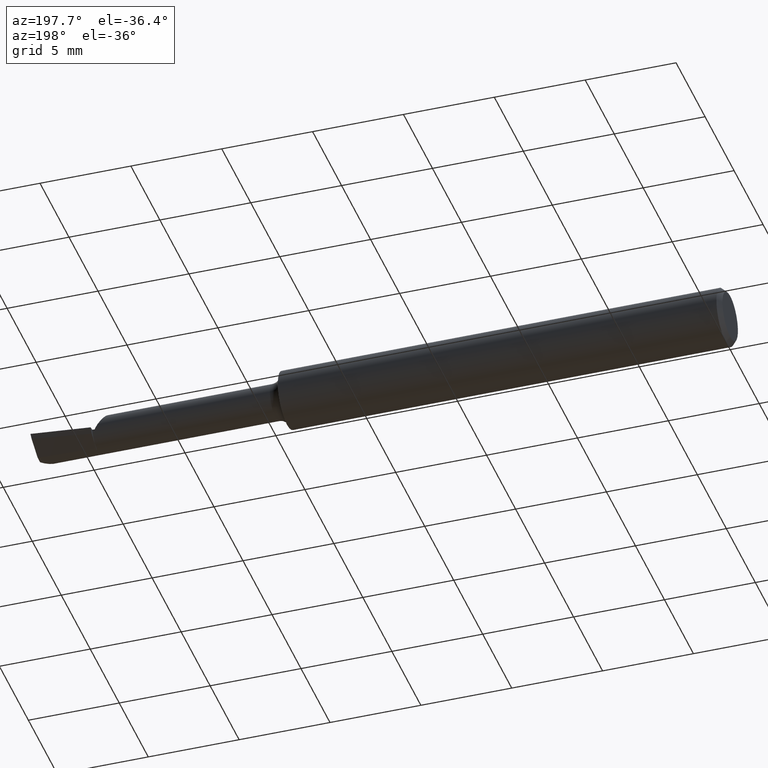
[diagram: clean part render]
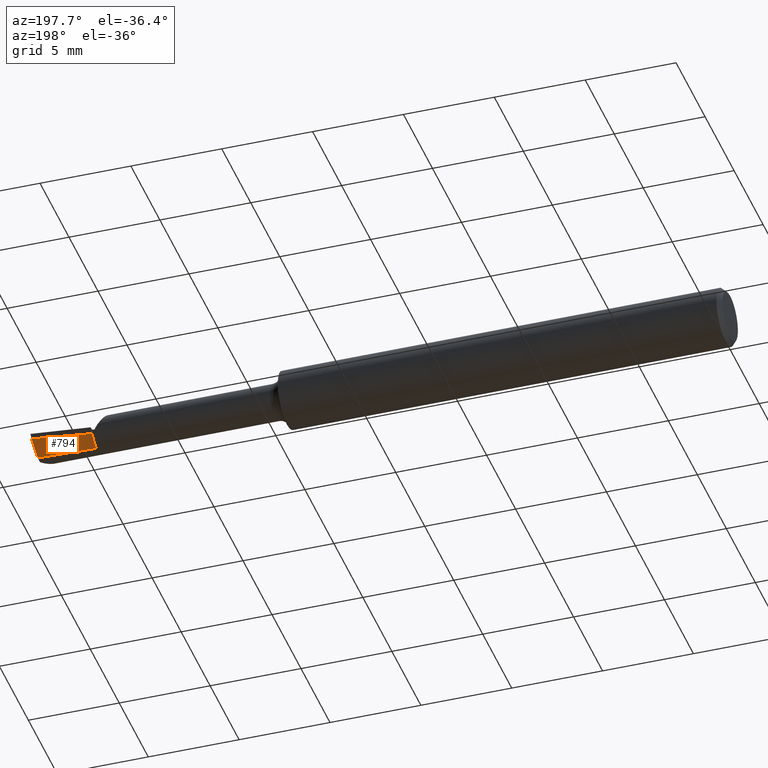
[diagram: same view with one face highlighted and labeled with its STEP entity id]
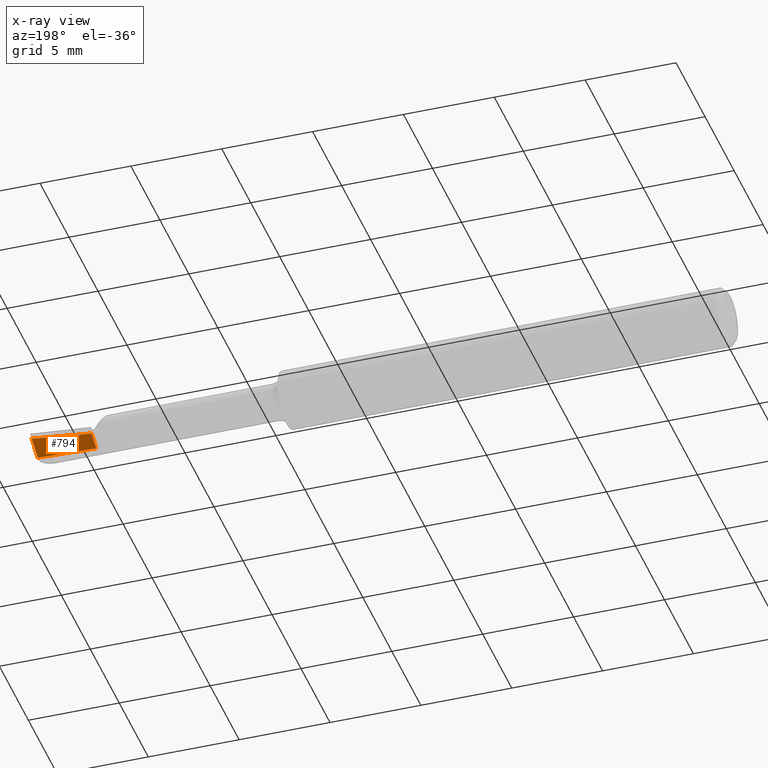
[diagram: x-ray of the same camera — body ghosted, the highlighted face saturated]
A machine part, auxiliary view. The second image highlights one B-rep face of the part: STEP entity #794.
The next image is the same camera in x-ray: the body ghosted, the highlighted face saturated — about 0% of this face is hidden behind the body in this view.
In plain terms, the highlighted face is a freeform B-spline surface patch.
Its self-contained STEP definition (entity closure, byte-faithful):
#2 = CARTESIAN_POINT ( 'NONE',  ( 0.7777777777777796775, -0.08446778369049480484, 0.02706893702457546097 ) ) ;
#17 = CARTESIAN_POINT ( 'NONE',  ( 1.411647286080403019, 0.01288141224813498659, -0.03900000000000003464 ) ) ;
#19 = CARTESIAN_POINT ( 'NONE',  ( -0.6666666666666620777, 0.08446778369049480484, -0.02706893702457545056 ) ) ;
#23 = CARTESIAN_POINT ( 'NONE',  ( 0.4682539682539705872, -0.03647374260270008078, -0.02969787187380758253 ) ) ;
#30 = CARTESIAN_POINT ( 'NONE',  ( 1.494920729777069690, 0.01671314237762522650, -0.03900000000000002076 ) ) ;
#34 =( BOUNDED_CURVE ( )  B_SPLINE_CURVE ( 1, ( #292, #109 ),
 .UNSPECIFIED., .F., .T. ) 
 B_SPLINE_CURVE_WITH_KNOTS ( ( 2, 2 ),
 ( 0.001724731492398852125, 0.002598886121437397369 ),
 .UNSPECIFIED. ) 
 CURVE ( )  GEOMETRIC_REPRESENTATION_ITEM ( )  RATIONAL_B_SPLINE_CURVE ( ( 0.9882916646871111599, 0.9882916646871111599 ) ) 
 REPRESENTATION_ITEM ( '' )  );
#36 = CARTESIAN_POINT ( 'NONE',  ( 0.05555555555555891090, -0.04595973774164850700, 0.009999999999999993269 ) ) ;
#63 = CARTESIAN_POINT ( 'NONE',  ( 0.9841269841269852936, -0.08784761505601204612, -0.01226092827625134725 ) ) ;
#75 = CARTESIAN_POINT ( 'NONE',  ( 1.293650793650794162, -0.05950713062688500754, -0.06274448060681807326 ) ) ;
#96 = CARTESIAN_POINT ( 'NONE',  ( 0.2619047619047648601, -0.04574713027336072685, -0.01093149418118462800 ) ) ;
#107 = VERTEX_POINT ( 'NONE', #376 ) ;
#109 = CARTESIAN_POINT ( 'NONE',  ( 1.370000000000000329, 0.04135515867258438699, -0.02240643533555659525 ) ) ;
#129 = CARTESIAN_POINT ( 'NONE',  ( 1.370000000000000329, 0.04135515867258438699, -0.02240643533555659525 ) ) ;
#132 = CARTESIAN_POINT ( 'NONE',  ( 1.370000000000000329, 0.04135515867258438699, -0.02240643533555659525 ) ) ;
#136 = CARTESIAN_POINT ( 'NONE',  ( 0.6746031746031765364, -0.07441292776309291201, 0.04405320219676703980 ) ) ;
#148 =( BOUNDED_SURFACE ( )  B_SPLINE_SURFACE ( 1, 2, ( 
 ( #272, #653, #707, #635, #701, #217, #326, #460, #395, #572, #23, #716, #96, #267, #36, #456, #510, #504, #766, #712, #341, #587, #213, #150, #281, #391, #643, #197, #675 ),
 ( #612, #628, #75, #564, #439, #63, #551, #2, #136, #378, #248, #189, #484, #743, #427, #679, #365, #431, #521, #342, #760, #19, #164, #768, #697, #573, #392, #588, #516 ) ),
 .UNSPECIFIED., .F., .F., .T. ) 
 B_SPLINE_SURFACE_WITH_KNOTS ( ( 2, 2 ),
 ( 3, 2, 2, 2, 2, 2, 2, 2, 2, 2, 2, 2, 2, 2, 3 ),
 ( 0.000000000000000000, 1.000000000000000000 ),
 ( 0.000000000000000000, 0.07142857142857142461, 0.1428571428571428492, 0.2142857142857142738, 0.2857142857142856984, 0.3571428571428571508, 0.4285714285714285476, 0.5000000000000000000, 0.5714285714285713969, 0.6428571428571429047, 0.7142857142857143016, 0.7857142857142856984, 0.8571428571428570953, 0.9285714285714286031, 1.000000000000000000 ),
 .UNSPECIFIED. ) 
 GEOMETRIC_REPRESENTATION_ITEM ( )  RATIONAL_B_SPLINE_SURFACE ( (
 ( 1.000000000000000000, 0.9749279121818236193, 1.000000000000000000, 0.9749279121818236193, 1.000000000000000000, 0.9749279121818236193, 1.000000000000000000, 0.9749279121818236193, 1.000000000000000000, 0.9749279121818236193, 1.000000000000000000, 0.9749279121818236193, 1.000000000000000000, 0.9749279121818236193, 1.000000000000000000, 0.9749279121818236193, 1.000000000000000000, 0.9749279121818236193, 1.000000000000000000, 0.9749279121818236193, 1.000000000000000000, 0.9749279121818236193, 1.000000000000000000, 0.9749279121818236193, 1.000000000000000000, 0.9749279121818236193, 1.000000000000000000, 0.9749279121818236193, 1.000000000000000000),
 ( 1.000000000000000000, 0.9749279121818236193, 1.000000000000000000, 0.9749279121818236193, 1.000000000000000000, 0.9749279121818236193, 1.000000000000000000, 0.9749279121818236193, 1.000000000000000000, 0.9749279121818236193, 1.000000000000000000, 0.9749279121818236193, 1.000000000000000000, 0.9749279121818236193, 1.000000000000000000, 0.9749279121818236193, 1.000000000000000000, 0.9749279121818236193, 1.000000000000000000, 0.9749279121818236193, 1.000000000000000000, 0.9749279121818236193, 1.000000000000000000, 0.9749279121818236193, 1.000000000000000000, 0.9749279121818236193, 1.000000000000000000, 0.9749279121818236193, 1.000000000000000000) ) ) 
 REPRESENTATION_ITEM ( '' )  SURFACE ( )  );
#150 = CARTESIAN_POINT ( 'NONE',  ( -0.8730158730158678049, 0.02969539714422872456, 0.03802276560945988537 ) ) ;
#154 = EDGE_CURVE ( 'NONE', #107, #491, #662, .T. ) ;
#164 = CARTESIAN_POINT ( 'NONE',  ( -0.7698412698412646638, 0.07441292776309291201, -0.04405320219676703286 ) ) ;
#171 = CARTESIAN_POINT ( 'NONE',  ( 1.496178134510733448, 0.02653297950056673210, -0.02945756494393632699 ) ) ;
#177 = ORIENTED_EDGE ( 'NONE', *, *, #731, .F. ) ;
#184 = CARTESIAN_POINT ( 'NONE',  ( 1.494920729777069690, 0.01671314237762522650, -0.03900000000000002076 ) ) ;
#189 = CARTESIAN_POINT ( 'NONE',  ( 0.3650793650793676681, -0.03150145455387539511, 0.08291677872550751172 ) ) ;
#197 = CARTESIAN_POINT ( 'NONE',  ( -1.285714285714279148, 0.04824217248555000281, 0.0004900102242139721832 ) ) ;
#213 = CARTESIAN_POINT ( 'NONE',  ( -0.7698412698412646638, 0.01997628288847712666, 0.04258222182132639921 ) ) ;
#217 = CARTESIAN_POINT ( 'NONE',  ( 0.9841269841269852936, 0.01121261792240686554, -0.04692360296771245359 ) ) ;
#237 = VERTEX_POINT ( 'NONE', #129 ) ;
#248 = CARTESIAN_POINT ( 'NONE',  ( 0.4682539682539705872, -0.04792976319478321756, 0.07197712304723306864 ) ) ;
#263 = CARTESIAN_POINT ( 'NONE',  ( 1.453288292462108666, 0.01470050349010161225, -0.03900000000000003464 ) ) ;
#267 = CARTESIAN_POINT ( 'NONE',  ( 0.1587301587301617467, -0.04824217248555000281, -0.0004900102242139638348 ) ) ;
#272 = CARTESIAN_POINT ( 'NONE',  ( 1.500000000000000222, 0.04595973774164850700, -0.01000000000000000021 ) ) ;
#279 = CARTESIAN_POINT ( 'NONE',  ( 1.498720638453481246, 0.04593126081184677190, -0.01012999375691903473 ) ) ;
#281 = CARTESIAN_POINT ( 'NONE',  ( -0.9761904761904703909, 0.03647374260270008078, 0.02969787187380758600 ) ) ;
#292 = CARTESIAN_POINT ( 'NONE',  ( 1.370000000000000329, 0.01120415919391035652, -0.03900000000000004158 ) ) ;
#305 = B_SPLINE_CURVE_WITH_KNOTS ( 'NONE', 3,
 ( #184, #171, #660, #598 ),
 .UNSPECIFIED., .F., .F.,
 ( 4, 4 ),
 ( 1.323639050263514647E-05, 0.001061002551687167646 ),
 .UNSPECIFIED. ) ;
#326 = CARTESIAN_POINT ( 'NONE',  ( 0.8809523809523824855, 0.0004777246448406644898, -0.04703264050045269373 ) ) ;
#341 = CARTESIAN_POINT ( 'NONE',  ( -0.5634920634920589366, -0.0004777246448406708866, 0.04703264050045269373 ) ) ;
#342 = CARTESIAN_POINT ( 'NONE',  ( -0.4603174603174559620, 0.08784761505601203224, 0.01226092827625136113 ) ) ;
#355 = ORIENTED_EDGE ( 'NONE', *, *, #518, .T. ) ;
#365 = CARTESIAN_POINT ( 'NONE',  ( -0.1507936507936470660, 0.05950713062688500060, 0.06274448060681807326 ) ) ;
#367 = VERTEX_POINT ( 'NONE', #279 ) ;
#376 = CARTESIAN_POINT ( 'NONE',  ( 1.370000000000000329, 0.01120415919391035652, -0.03900000000000004158 ) ) ;
#378 = CARTESIAN_POINT ( 'NONE',  ( 0.5714285714285736173, -0.06435807183569101919, 0.06103746736895860475 ) ) ;
#391 = CARTESIAN_POINT ( 'NONE',  ( -1.079365079365073754, 0.04325208806117143007, 0.02137297813815529010 ) ) ;
#392 = CARTESIAN_POINT ( 'NONE',  ( -1.182539682539676562, 0.01195352120577683128, -0.08564509193671035470 ) ) ;
#395 = CARTESIAN_POINT ( 'NONE',  ( 0.6746031746031765364, -0.01997628288847713013, -0.04258222182132639921 ) ) ;
#411 =( BOUNDED_CURVE ( )  B_SPLINE_CURVE ( 2, ( #498, #631, #132 ),
 .UNSPECIFIED., .F., .T. ) 
 B_SPLINE_CURVE_WITH_KNOTS ( ( 3, 3 ),
 ( 0.0004540267036943042224, 0.04489127974352310341 ),
 .UNSPECIFIED. ) 
 CURVE ( )  GEOMETRIC_REPRESENTATION_ITEM ( )  RATIONAL_B_SPLINE_CURVE ( ( 0.9996832908727948386, 0.9842836969129826752, 0.9882916646871111599 ) ) 
 REPRESENTATION_ITEM ( '' )  );
#427 = CARTESIAN_POINT ( 'NONE',  ( 0.05555555555555891090, 0.02639026225835061634, 0.08234999999999999265 ) ) ;
#431 = CARTESIAN_POINT ( 'NONE',  ( -0.2539682539682499574, 0.07382814887939052884, 0.04916236636154935891 ) ) ;
#439 = CARTESIAN_POINT ( 'NONE',  ( 1.087301587301588324, -0.08083788196770129442, -0.03071164731890034180 ) ) ;
#456 = CARTESIAN_POINT ( 'NONE',  ( -0.04761904761904422329, -0.04367730299774701119, 0.02049001022421395937 ) ) ;
#460 = CARTESIAN_POINT ( 'NONE',  ( 0.7777777777777796775, -0.01025716863272553743, -0.04714167803319291306 ) ) ;
#484 = CARTESIAN_POINT ( 'NONE',  ( 0.2619047619047648601, -0.01195352120577681740, 0.08564509193671035470 ) ) ;
#491 = VERTEX_POINT ( 'NONE', #786 ) ;
#497 = ORIENTED_EDGE ( 'NONE', *, *, #154, .F. ) ;
#498 = CARTESIAN_POINT ( 'NONE',  ( 1.498720638453481246, 0.04593126081184677190, -0.01012999375691903473 ) ) ;
#504 = CARTESIAN_POINT ( 'NONE',  ( -0.2539682539682499574, -0.03046160798427212726, 0.03741173285425204026 ) ) ;
#510 = CARTESIAN_POINT ( 'NONE',  ( -0.1507936507936470660, -0.03706945549100956749, 0.02895087153923299808 ) ) ;
#516 = CARTESIAN_POINT ( 'NONE',  ( -1.388888888888882400, -0.02639026225835062675, -0.08234999999999999265 ) ) ;
#518 = EDGE_CURVE ( 'NONE', #107, #237, #34, .T. ) ;
#521 = CARTESIAN_POINT ( 'NONE',  ( -0.3571428571428530430, 0.08083788196770129442, 0.03071164731890034874 ) ) ;
#551 = CARTESIAN_POINT ( 'NONE',  ( 0.8809523809523824855, -0.08615769937325341854, 0.007404004374162058595 ) ) ;
#564 = CARTESIAN_POINT ( 'NONE',  ( 1.190476190476191576, -0.07382814887939052884, -0.04916236636154935197 ) ) ;
#567 = CARTESIAN_POINT ( 'NONE',  ( 1.370000000000000329, 0.01120415919391035652, -0.03900000000000004158 ) ) ;
#572 = CARTESIAN_POINT ( 'NONE',  ( 0.5714285714285736173, -0.02969539714422873497, -0.03802276560945987843 ) ) ;
#573 = CARTESIAN_POINT ( 'NONE',  ( -1.079365079365073754, 0.03150145455387540205, -0.08291677872550751172 ) ) ;
#587 = CARTESIAN_POINT ( 'NONE',  ( -0.6666666666666620777, 0.01025716863272553049, 0.04714167803319291306 ) ) ;
#588 = CARTESIAN_POINT ( 'NONE',  ( -1.285714285714279148, -0.007594412142321756848, -0.08837340514791318380 ) ) ;
#598 = CARTESIAN_POINT ( 'NONE',  ( 1.498720638453481246, 0.04593126081184677190, -0.01012999375691903473 ) ) ;
#601 = ORIENTED_EDGE ( 'NONE', *, *, #617, .F. ) ;
#612 = CARTESIAN_POINT ( 'NONE',  ( 1.500000000000000222, -0.02639026225835062675, -0.08234999999999999265 ) ) ;
#617 = EDGE_CURVE ( 'NONE', #491, #367, #305, .T. ) ;
#621 = EDGE_LOOP ( 'NONE', ( #601, #497, #355, #177 ) ) ;
#628 = CARTESIAN_POINT ( 'NONE',  ( 1.396825396825397192, -0.04518611237437946543, -0.07632659485208681538 ) ) ;
#631 = CARTESIAN_POINT ( 'NONE',  ( 1.435102803342900302, 0.04450652283676050092, -0.01659001861898107277 ) ) ;
#635 = CARTESIAN_POINT ( 'NONE',  ( 1.190476190476191576, 0.03046160798427212033, -0.03741173285425204026 ) ) ;
#643 = CARTESIAN_POINT ( 'NONE',  ( -1.182539682539676562, 0.04574713027336072685, 0.01093149418118463320 ) ) ;
#653 = CARTESIAN_POINT ( 'NONE',  ( 1.396825396825397192, 0.04367730299774701119, -0.02049001022421396631 ) ) ;
#660 = CARTESIAN_POINT ( 'NONE',  ( 1.497444784428966225, 0.03627369087563799693, -0.01983421314952855605 ) ) ;
#662 = B_SPLINE_CURVE_WITH_KNOTS ( 'NONE', 3,
 ( #567, #17, #263, #30 ),
 .UNSPECIFIED., .F., .F.,
 ( 4, 4 ),
 ( 6.946513017424995024E-18, 0.003176070394315959246 ),
 .UNSPECIFIED. ) ;
#675 = CARTESIAN_POINT ( 'NONE',  ( -1.388888888888882400, 0.04595973774164850700, -0.01000000000000000021 ) ) ;
#679 = CARTESIAN_POINT ( 'NONE',  ( -0.04761904761904422329, 0.04518611237437945849, 0.07632659485208681538 ) ) ;
#697 = CARTESIAN_POINT ( 'NONE',  ( -0.9761904761904703909, 0.04792976319478321756, -0.07197712304723305476 ) ) ;
#701 = CARTESIAN_POINT ( 'NONE',  ( 1.087301587301588324, 0.02083711295333949207, -0.04216766791098225386 ) ) ;
#707 = CARTESIAN_POINT ( 'NONE',  ( 1.293650793650794162, 0.03706945549100956749, -0.02895087153923300502 ) ) ;
#712 = CARTESIAN_POINT ( 'NONE',  ( -0.4603174603174559620, -0.01121261792240687422, 0.04692360296771245359 ) ) ;
#716 = CARTESIAN_POINT ( 'NONE',  ( 0.3650793650793676681, -0.04325208806117143007, -0.02137297813815528316 ) ) ;
#731 = EDGE_CURVE ( 'NONE', #367, #237, #411, .T. ) ;
#743 = CARTESIAN_POINT ( 'NONE',  ( 0.1587301587301617467, 0.007594412142321773328, 0.08837340514791318380 ) ) ;
#760 = CARTESIAN_POINT ( 'NONE',  ( -0.5634920634920589366, 0.08615769937325341854, -0.007404004374162047319 ) ) ;
#766 = CARTESIAN_POINT ( 'NONE',  ( -0.3571428571428530430, -0.02083711295333950247, 0.04216766791098225386 ) ) ;
#768 = CARTESIAN_POINT ( 'NONE',  ( -0.8730158730158678049, 0.06435807183569103307, -0.06103746736895859781 ) ) ;
#771 = FACE_OUTER_BOUND ( 'NONE', #621, .T. ) ;
#786 = CARTESIAN_POINT ( 'NONE',  ( 1.494920729777069690, 0.01671314237762522650, -0.03900000000000002076 ) ) ;
#794 = ADVANCED_FACE ( 'NONE', ( #771 ), #148, .T. ) ;